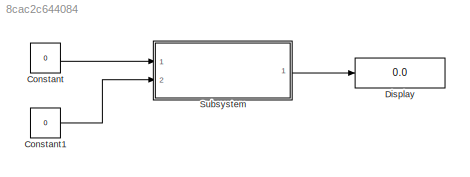
MODEL slx_8cac2c644084
KIND model
BLOCK [Constant] Constant
  Value = 0
BLOCK [Constant] Constant1
  Value = 0
BLOCK [Display] Display
  Decimation = 1
  Ports = [1]
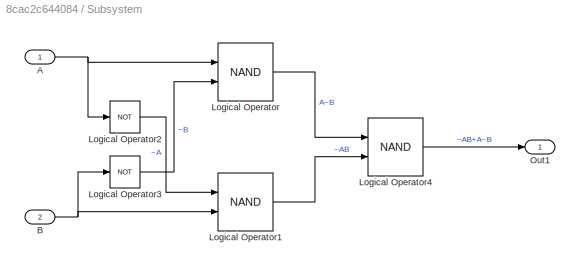
BLOCK [SubSystem] Subsystem
  FunctionWithSeparateData = off
  MaskHideContents = off
  MinAlgLoopOccurrences = off
  Opaque = off
  Ports = [2, 1]
  PropExecContextOutsideSubsystem = off
  RTWSystemCode = Auto
  RequestExecContextInheritance = off
BLOCK [Inport] Subsystem/A
  IconDisplay = Port number
BLOCK [Inport] Subsystem/B
  IconDisplay = Port number
  Port = 2
BLOCK [Logic] Subsystem/Logical Operator
  AllPortsSameDT = off
  IconShape = distinctive
  Operator = NAND
  OutDataTypeStr = boolean
  Ports = [2, 1]
BLOCK [Logic] Subsystem/Logical Operator1
  AllPortsSameDT = off
  IconShape = distinctive
  Operator = NAND
  OutDataTypeStr = boolean
  Ports = [2, 1]
BLOCK [Logic] Subsystem/Logical Operator2
  AllPortsSameDT = off
  IconShape = distinctive
  Operator = NOT
  OutDataTypeStr = boolean
  Ports = [1, 1]
BLOCK [Logic] Subsystem/Logical Operator3
  AllPortsSameDT = off
  IconShape = distinctive
  Operator = NOT
  OutDataTypeStr = boolean
  Ports = [1, 1]
BLOCK [Logic] Subsystem/Logical Operator4
  AllPortsSameDT = off
  IconShape = distinctive
  Operator = NAND
  OutDataTypeStr = boolean
  Ports = [2, 1]
BLOCK [Outport] Subsystem/Out1
  IconDisplay = Port number
LINE Constant1:1 -> Subsystem:2
LINE Constant:1 -> Subsystem:1
NET Subsystem/A:1 -> Subsystem/Logical Operator2:1, Subsystem/Logical Operator:1
NET Subsystem/B:1 -> Subsystem/Logical Operator1:2, Subsystem/Logical Operator3:1
LINE Subsystem/Logical Operator1:1 -> Subsystem/Logical Operator4:2
LINE Subsystem/Logical Operator2:1 -> Subsystem/Logical Operator1:1
LINE Subsystem/Logical Operator3:1 -> Subsystem/Logical Operator:2
LINE Subsystem/Logical Operator4:1 -> Subsystem/Out1:1
LINE Subsystem/Logical Operator:1 -> Subsystem/Logical Operator4:1
LINE Subsystem:1 -> Display:1
note: NET lines group one-source signal fan-out (src -> all destinations, sorted); 1:1 wires keep LINE
